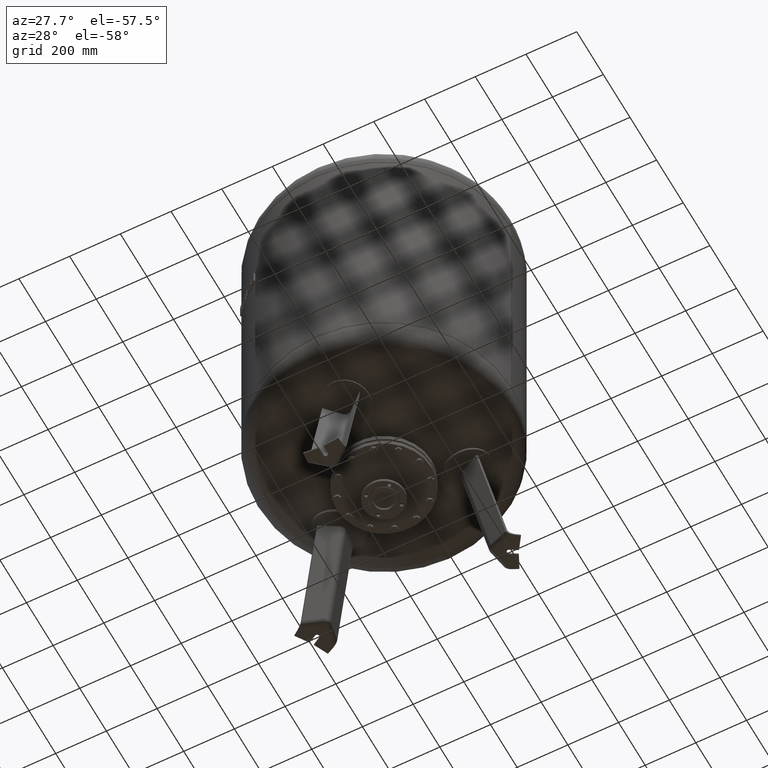
[diagram: clean part render]
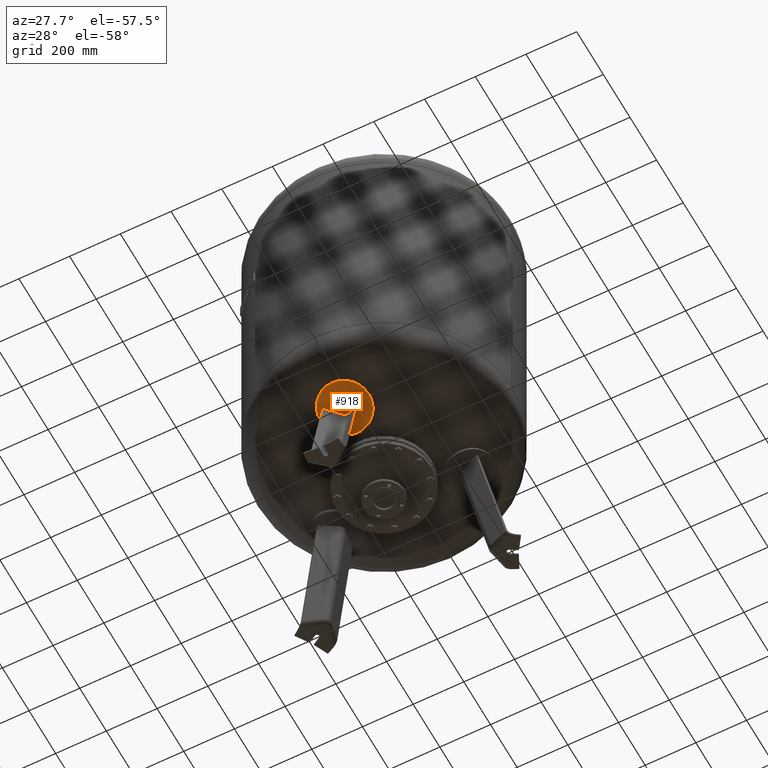
[diagram: same view with one face highlighted and labeled with its STEP entity id]
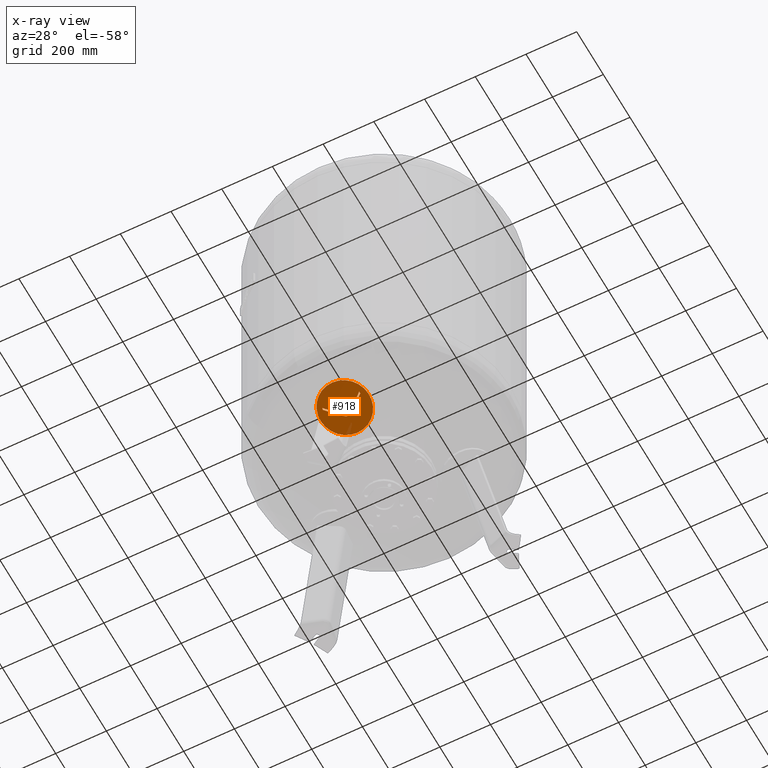
[diagram: x-ray of the same camera — body ghosted, the highlighted face saturated]
A machine part, auxiliary view. The second image highlights one B-rep face of the part: STEP entity #918.
The next image is the same camera in x-ray: the body ghosted, the highlighted face saturated — about 1% of this face is hidden behind the body in this view.
In plain terms, the highlighted spherical surface has radius 1006 mm.
Its self-contained STEP definition (entity closure, byte-faithful):
#130=CARTESIAN_POINT('',(1.355536E-013,-199.528414518467460,469.158360530759300));
#131=VERTEX_POINT('',#130);
#140=CARTESIAN_POINT('',(-2.682530E-014,-389.739717777498130,530.961759405748920));
#141=VERTEX_POINT('',#140);
#142=CARTESIAN_POINT('',(6.045519E-014,-294.634066147982880,500.060059968254170));
#143=DIRECTION('',(-2.640756E-016,-0.309016994374948,-0.951056516295154));
#144=DIRECTION('',(7.505351E-016,0.951056516295154,-0.309016994374948));
#145=AXIS2_PLACEMENT_3D('',#142,#143,#144);
#146=CIRCLE('',#145,100.0);
#147=EDGE_CURVE('',#141,#131,#146,.T.);
#767=CARTESIAN_POINT('',(3.247985E-013,14.697347569170404,1452.084259496684100));
#768=DIRECTION('',(1.0,0.0,0.0));
#769=DIRECTION('',(7.505351E-016,0.951056516295154,-0.309016994374948));
#770=AXIS2_PLACEMENT_3D('',#767,#768,#769);
#771=SPHERICAL_SURFACE('',#770,1006.0);
#772=CARTESIAN_POINT('',(6.045519E-014,-294.634066147982880,500.060059968254170));
#773=DIRECTION('',(-2.640756E-016,-0.309016994374948,-0.951056516295154));
#774=DIRECTION('',(7.505351E-016,0.951056516295154,-0.309016994374948));
#775=AXIS2_PLACEMENT_3D('',#772,#773,#774);
#776=CIRCLE('',#775,100.0);
#777=EDGE_CURVE('',#131,#141,#776,.T.);
#778=ORIENTED_EDGE('',*,*,#777,.T.);
#779=ORIENTED_EDGE('',*,*,#147,.T.);
#780=EDGE_LOOP('',(#778,#779));
#781=FACE_OUTER_BOUND('',#780,.T.);
#782=CARTESIAN_POINT('',(-72.837866169854934,-325.355732478448830,508.106215259451630));
#783=VERTEX_POINT('',#782);
#784=CARTESIAN_POINT('',(-73.499999999999886,-318.506317434111050,505.718015578199410));
#785=VERTEX_POINT('',#784);
#786=CARTESIAN_POINT('',(-84.667466494879974,7.077275584631195,1453.703955797395800));
#787=DIRECTION('',(0.995793708775987,0.089621433789838,-0.019049623818306));
#788=DIRECTION('',(-0.019126591083317,4.684664E-018,-0.999817070025078));
#789=AXIS2_PLACEMENT_3D('',#786,#787,#788);
#790=CIRCLE('',#789,1002.400484439319300);
#791=EDGE_CURVE('',#783,#785,#790,.T.);
#792=ORIENTED_EDGE('',*,*,#791,.F.);
#793=CARTESIAN_POINT('',(-16.136450826554409,-280.133865715810600,490.392952149244080));
#794=VERTEX_POINT('',#793);
#795=CARTESIAN_POINT('',(36.878824681629915,-27.989166038700091,1461.157558058853700));
#796=DIRECTION('',(-0.645458033062181,0.747104967402683,-0.158802063077708));
#797=DIRECTION('',(5.092368E-017,0.207911690817760,0.978147600733806));
#798=AXIS2_PLACEMENT_3D('',#795,#796,#797);
#799=CIRCLE('',#798,1004.376169121564000);
#800=EDGE_CURVE('',#794,#783,#799,.T.);
#801=ORIENTED_EDGE('',*,*,#800,.F.);
#802=CARTESIAN_POINT('',(16.136450826554661,-280.133865715810600,490.392952149244080));
#803=VERTEX_POINT('',#802);
#804=CARTESIAN_POINT('',(16.136450826554661,-280.133865715810600,490.392952149244080));
#805=CARTESIAN_POINT('',(16.055788335213304,-280.068711173970600,490.371623892671440));
#806=CARTESIAN_POINT('',(15.974560938435895,-280.003937796076910,490.350420493468330));
#807=CARTESIAN_POINT('',(15.271072185139301,-279.450175733366620,490.169148601515130));
#808=CARTESIAN_POINT('',(14.617155696579983,-278.983806029977020,490.016489016976440));
#809=CARTESIAN_POINT('',(13.254162622372212,-278.109086722377530,489.730169035990510));
#810=CARTESIAN_POINT('',(12.545018530551998,-277.700688845133810,489.596492822823280));
#811=CARTESIAN_POINT('',(11.082569575685701,-276.951156519132950,489.351162059827520));
#812=CARTESIAN_POINT('',(10.329265683405854,-276.610020363679380,489.239506937421310));
#813=CARTESIAN_POINT('',(8.791205486625531,-276.001577381599190,489.040364541220580));
#814=CARTESIAN_POINT('',(8.005754446746538,-275.733995894137930,488.952787360993230));
#815=CARTESIAN_POINT('',(6.415809135875814,-275.276198818704300,488.802955942629920));
#816=CARTESIAN_POINT('',(5.611314203531454,-275.085985307559840,488.740702376916890));
#817=CARTESIAN_POINT('',(3.998040789200811,-274.783995146262500,488.641866930361120));
#818=CARTESIAN_POINT('',(3.189177908543455,-274.672207140675880,488.605281330539300));
#819=CARTESIAN_POINT('',(1.582421500277553,-274.524969362016180,488.557093949216380));
#820=CARTESIAN_POINT('',(0.784527432496211,-274.489524912797550,488.545493912186370));
#821=CARTESIAN_POINT('',(1.245596E-013,-274.489524912797550,488.545493912186370));
#822=CARTESIAN_POINT('',(-0.784527432495960,-274.489524912797550,488.545493912186370));
#823=CARTESIAN_POINT('',(-1.582421500277301,-274.524969362016180,488.557093949216380));
#824=CARTESIAN_POINT('',(-3.189177908543210,-274.672207140675880,488.605281330539300));
#825=CARTESIAN_POINT('',(-3.998040789200574,-274.783995146262500,488.641866930361120));
#826=CARTESIAN_POINT('',(-5.611314203531220,-275.085985307559840,488.740702376916890));
#827=CARTESIAN_POINT('',(-6.415809135875574,-275.276198818704300,488.802955942629920));
#828=CARTESIAN_POINT('',(-8.005754446746293,-275.733995894137930,488.952787360993230));
#829=CARTESIAN_POINT('',(-8.791205486625280,-276.001577381599190,489.040364541220580));
#830=CARTESIAN_POINT('',(-10.329265683405596,-276.610020363679380,489.239506937421370));
#831=CARTESIAN_POINT('',(-11.082569575685449,-276.951156519132950,489.351162059827520));
#832=CARTESIAN_POINT('',(-12.545018530551733,-277.700688845133810,489.596492822823280));
#833=CARTESIAN_POINT('',(-13.254162622371913,-278.109086722377530,489.730169035990630));
#834=CARTESIAN_POINT('',(-14.617155696579696,-278.983806029976960,490.016489016976440));
#835=CARTESIAN_POINT('',(-15.271072185138980,-279.450175733366730,490.169148601515020));
#836=CARTESIAN_POINT('',(-15.974560938435571,-280.003937796077030,490.350420493468220));
#837=CARTESIAN_POINT('',(-16.055788335213052,-280.068711173970600,490.371623892671440));
#838=CARTESIAN_POINT('',(-16.136450826554409,-280.133865715810600,490.392952149244080));
#839=B_SPLINE_CURVE_WITH_KNOTS('',3,(#804,#805,#806,#807,#808,#809,#810,#811,#812,#813,#814,#815,#816,#817,#818,#819,#820,#821,#822,#823,#824,#825,#826,#827,#828,#829,#830,#831,#832,#833,#834,#835,#836,#837,#838),.UNSPECIFIED.,.F.,.U.,(4,2,2,2,2,2,2,2,3,2,2,2,2,2,2,2,4),(-16.784681571035506,-16.475076082417758,-14.121493784929527,-11.767911487441268,-9.414329189953008,-7.060746892464749,-4.707164594976490,-2.353582297488259,0.0,2.353582297488253,4.707164594976506,7.060746892464759,9.414329189953012,11.767911487441264,14.121493784929518,16.475076082417772,16.784681571035524),.UNSPECIFIED.);
#840=EDGE_CURVE('',#803,#794,#839,.T.);
#841=ORIENTED_EDGE('',*,*,#840,.F.);
#842=CARTESIAN_POINT('',(72.837866169855118,-325.355732478448830,508.106215259451630));
#843=VERTEX_POINT('',#842);
#844=CARTESIAN_POINT('',(-36.878824681629212,-27.989166038699977,1461.157558058853700));
#845=DIRECTION('',(0.645458033062182,0.747104967402682,-0.158802063077709));
#846=DIRECTION('',(5.092368E-017,0.207911690817760,0.978147600733805));
#847=AXIS2_PLACEMENT_3D('',#844,#845,#846);
#848=CIRCLE('',#847,1004.376169121563900);
#849=EDGE_CURVE('',#843,#803,#848,.T.);
#850=ORIENTED_EDGE('',*,*,#849,.F.);
#851=CARTESIAN_POINT('',(73.500000000000128,-318.506317434111050,505.718015578199190));
#852=VERTEX_POINT('',#851);
#853=CARTESIAN_POINT('',(84.667466494880742,7.077275584631138,1453.703955797395800));
#854=DIRECTION('',(-0.995793708775987,0.089621433789840,-0.019049623818306));
#855=DIRECTION('',(-0.019126591083317,4.684664E-018,0.999817070025078));
#856=AXIS2_PLACEMENT_3D('',#853,#854,#855);
#857=CIRCLE('',#856,1002.400484439319300);
#858=EDGE_CURVE('',#852,#843,#857,.T.);
#859=ORIENTED_EDGE('',*,*,#858,.F.);
#860=CARTESIAN_POINT('',(16.136450826554636,-272.683576393646550,488.140371349142640));
#861=VERTEX_POINT('',#860);
#862=CARTESIAN_POINT('',(-33.055219954219147,-23.563418834532399,1460.216836450315200));
#863=DIRECTION('',(-0.645458033062182,-0.747104967402682,0.158802063077709));
#864=DIRECTION('',(-5.092368E-017,-0.207911690817760,-0.978147600733805));
#865=AXIS2_PLACEMENT_3D('',#862,#863,#864);
#866=CIRCLE('',#865,1004.695639176399000);
#867=EDGE_CURVE('',#861,#852,#866,.T.);
#868=ORIENTED_EDGE('',*,*,#867,.F.);
#869=CARTESIAN_POINT('',(-16.136450826554437,-272.683576393646660,488.140371349142640));
#870=VERTEX_POINT('',#869);
#871=CARTESIAN_POINT('',(-16.136450826554437,-272.683576393646660,488.140371349142640));
#872=CARTESIAN_POINT('',(-16.056543514067616,-272.618922255207510,488.119758337632730));
#873=CARTESIAN_POINT('',(-15.976082350464866,-272.554643239234570,488.099264993121150));
#874=CARTESIAN_POINT('',(-15.273208616904984,-272.000291427142600,487.922527930590210));
#875=CARTESIAN_POINT('',(-14.619130546465540,-271.532916879230870,487.773524823873860));
#876=CARTESIAN_POINT('',(-13.255823579241481,-270.656345283794110,487.494072222439000));
#877=CARTESIAN_POINT('',(-12.546527218548720,-270.247099859986290,487.363607291874300));
#878=CARTESIAN_POINT('',(-11.083789489576636,-269.496035811884780,487.124177053163460));
#879=CARTESIAN_POINT('',(-10.330349102090997,-269.154215457124850,487.015211181380040));
#880=CARTESIAN_POINT('',(-8.792035986315941,-268.544568607379860,486.820870060878350));
#881=CARTESIAN_POINT('',(-8.006469333644533,-268.276467252523840,486.735407184319850));
#882=CARTESIAN_POINT('',(-6.416316571608137,-267.817791462800410,486.589196233214520));
#883=CARTESIAN_POINT('',(-5.611729804286177,-267.627219100374360,486.528448813028320));
#884=CARTESIAN_POINT('',(-3.998296859116512,-267.324664919232480,486.432006304194660));
#885=CARTESIAN_POINT('',(-3.189366430951302,-267.212671750275380,486.396307595334520));
#886=CARTESIAN_POINT('',(-1.582498479684512,-267.065165766231530,486.349288981572390));
#887=CARTESIAN_POINT('',(-0.784560416873323,-267.029658287757290,486.337970779564160));
#888=CARTESIAN_POINT('',(9.974081E-014,-267.029658287757290,486.337970779564160));
#889=CARTESIAN_POINT('',(0.784560416873521,-267.029658287757290,486.337970779564160));
#890=CARTESIAN_POINT('',(1.582498479684705,-267.065165766231530,486.349288981572390));
#891=CARTESIAN_POINT('',(3.189366430951490,-267.212671750275380,486.396307595334520));
#892=CARTESIAN_POINT('',(3.998296859116698,-267.324664919232590,486.432006304194540));
#893=CARTESIAN_POINT('',(5.611729804286367,-267.627219100374360,486.528448813028210));
#894=CARTESIAN_POINT('',(6.416316571608327,-267.817791462800410,486.589196233214520));
#895=CARTESIAN_POINT('',(8.006469333644727,-268.276467252523840,486.735407184319850));
#896=CARTESIAN_POINT('',(8.792035986316138,-268.544568607379800,486.820870060878290));
#897=CARTESIAN_POINT('',(10.330349102091189,-269.154215457124790,487.015211181379980));
#898=CARTESIAN_POINT('',(11.083789489576766,-269.496035811884840,487.124177053163520));
#899=CARTESIAN_POINT('',(12.546527218548844,-270.247099859986290,487.363607291874360));
#900=CARTESIAN_POINT('',(13.255823579241612,-270.656345283794110,487.494072222438890));
#901=CARTESIAN_POINT('',(14.619130546465692,-271.532916879230870,487.773524823873860));
#902=CARTESIAN_POINT('',(15.273208616905162,-272.000291427142600,487.922527930590210));
#903=CARTESIAN_POINT('',(15.976082350465026,-272.554643239234570,488.099264993121150));
#904=CARTESIAN_POINT('',(16.056543514067837,-272.618922255207450,488.119758337632730));
#905=CARTESIAN_POINT('',(16.136450826554636,-272.683576393646550,488.140371349142640));
#906=B_SPLINE_CURVE_WITH_KNOTS('',3,(#871,#872,#873,#874,#875,#876,#877,#878,#879,#880,#881,#882,#883,#884,#885,#886,#887,#888,#889,#890,#891,#892,#893,#894,#895,#896,#897,#898,#899,#900,#901,#902,#903,#904,#905),.UNSPECIFIED.,.F.,.U.,(4,2,2,2,2,2,2,2,3,2,2,2,2,2,2,2,4),(-16.782365627384145,-16.475768754341857,-14.122087503721616,-11.768406253101347,-9.414725002481077,-7.061043751860808,-4.707362501240539,-2.353681250620269,0.0,2.353681250620262,4.707362501240525,7.061043751860787,9.414725002481049,11.768406253101311,14.122087503721573,16.475768754341836,16.782365627384028),.UNSPECIFIED.);
#907=EDGE_CURVE('',#870,#861,#906,.T.);
#908=ORIENTED_EDGE('',*,*,#907,.F.);
#909=CARTESIAN_POINT('',(33.055219954219837,-23.563418834532513,1460.216836450315200));
#910=DIRECTION('',(0.645458033062181,-0.747104967402683,0.158802063077709));
#911=DIRECTION('',(-5.092368E-017,-0.207911690817760,-0.978147600733806));
#912=AXIS2_PLACEMENT_3D('',#909,#910,#911);
#913=CIRCLE('',#912,1004.695639176398800);
#914=EDGE_CURVE('',#785,#870,#913,.T.);
#915=ORIENTED_EDGE('',*,*,#914,.F.);
#916=EDGE_LOOP('',(#792,#801,#841,#850,#859,#868,#908,#915));
#917=FACE_BOUND('',#916,.T.);
#918=ADVANCED_FACE('',(#781,#917),#771,.T.);